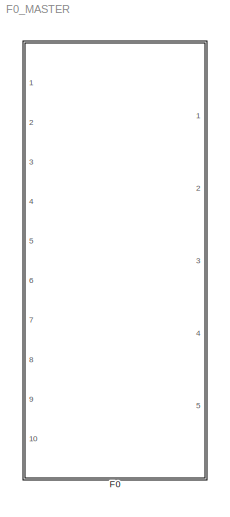
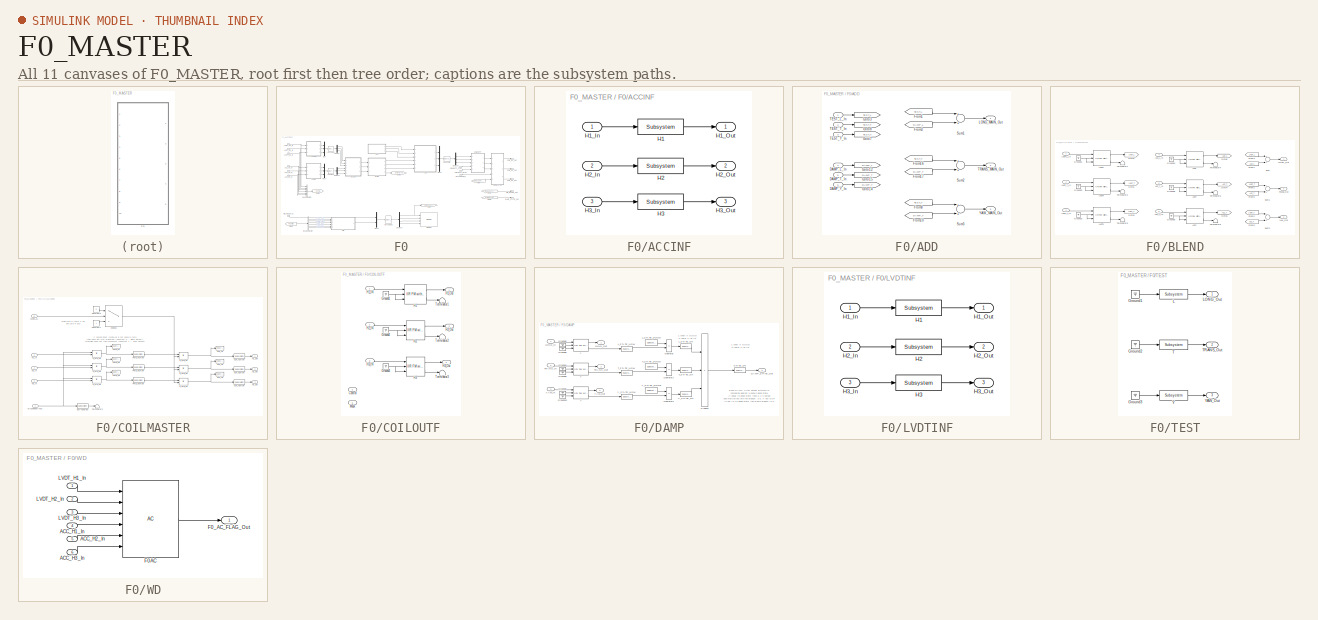
[diagram: thumbnail index - all 11 canvases of the model, root first then tree order]
MODEL F0_MASTER
KIND library
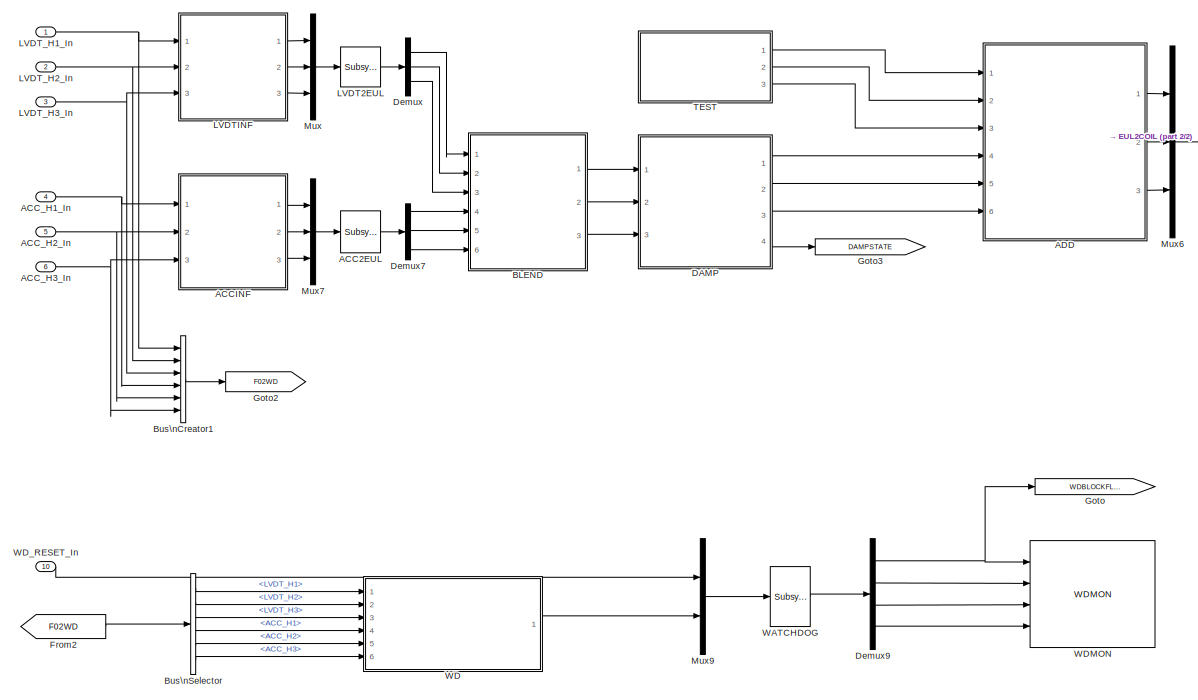
[diagram: F0 - part 1/2, center side, full height]
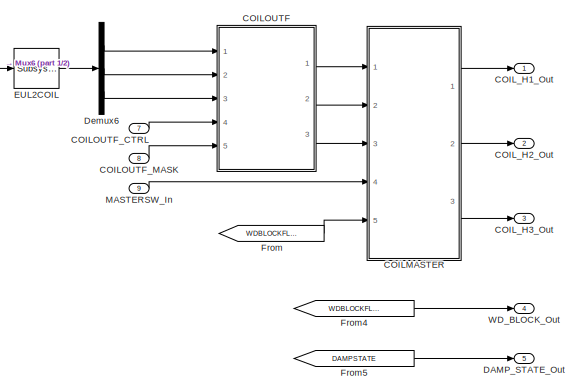
[diagram: F0 - part 2/2, middle right region]
BLOCK [SubSystem] F0
  Ports = [10, 5]
  RequestExecContextInheritance = off
  SID = 1
BLOCK [Reference] F0/ACC2EUL  REF=cdsMuxMatrix/Subsystem
  AttributesFormatString = %<Tag>
  Description = ADL=SUS_INMATRIX.adl                                                                \nSCRIPT=generate_KisselButton.py 4 5 #CHANNEL# > #TARGET_DIR#/#FULL_PART_NAME#_KB.adl
  Ports = [1, 1]
  SID = 196
  SourceBlock = cdsMuxMatrix/Subsystem
  SourceType = SubSystem
  Tag = cdsMuxMatrix
BLOCK [SubSystem] F0/ACCINF
  Ports = [3, 3]
  RequestExecContextInheritance = off
  SID = 180
BLOCK [Reference] F0/ACCINF/H1  REF=cdsFilt/Subsystem
  AttributesFormatString = %<Tag>
  Description = Purpose:                                                                                                                                                                                                                                  \nStandard CDS IIR filter module.                                                                                                                                     ...<+1302ch>  <repeated x9 — deduplicated; at blocks: H1, H2, H3, L, T, Y>
  Ports = [1, 1]
  SID = 282
  SourceBlock = cdsFilt/Subsystem
  SourceType = SubSystem
  Tag = cdsFilt
BLOCK [Inport] F0/ACCINF/H1_In
  IconDisplay = Port number
  SID = 279
BLOCK [Outport] F0/ACCINF/H1_Out
  IconDisplay = Port number
  SID = 285
BLOCK [Reference] F0/ACCINF/H2  REF=cdsFilt/Subsystem
  AttributesFormatString = %<Tag>
  Ports = [1, 1]
  SID = 283
  SourceBlock = cdsFilt/Subsystem
  SourceType = SubSystem
  Tag = cdsFilt
BLOCK [Inport] F0/ACCINF/H2_In
  IconDisplay = Port number
  Port = 2
  SID = 280
BLOCK [Outport] F0/ACCINF/H2_Out
  IconDisplay = Port number
  Port = 2
  SID = 286
BLOCK [Reference] F0/ACCINF/H3  REF=cdsFilt/Subsystem
  AttributesFormatString = %<Tag>
  Ports = [1, 1]
  SID = 284
  SourceBlock = cdsFilt/Subsystem
  SourceType = SubSystem
  Tag = cdsFilt
BLOCK [Inport] F0/ACCINF/H3_In
  IconDisplay = Port number
  Port = 3
  SID = 281
BLOCK [Outport] F0/ACCINF/H3_Out
  IconDisplay = Port number
  Port = 3
  SID = 287
BLOCK [Inport] F0/ACC_H1_In
  IconDisplay = Port number
  Port = 4
  SID = 5
BLOCK [Inport] F0/ACC_H2_In
  IconDisplay = Port number
  Port = 5
  SID = 6
BLOCK [Inport] F0/ACC_H3_In
  IconDisplay = Port number
  Port = 6
  SID = 7
BLOCK [SubSystem] F0/ADD
  Ports = [6, 3]
  RequestExecContextInheritance = off
  SID = 14
BLOCK [Inport] F0/ADD/DAMP_L_In
  IconDisplay = Port number
  Port = 4
  SID = 295
BLOCK [Inport] F0/ADD/DAMP_T_In
  IconDisplay = Port number
  Port = 5
  SID = 296
BLOCK [Inport] F0/ADD/DAMP_Y_In
  IconDisplay = Port number
  Port = 6
  SID = 297
BLOCK [From] F0/ADD/From1
  CloseFcn = tagdialog Close
  GotoTag = TEST_L
  SID = 306
BLOCK [From] F0/ADD/From10
  CloseFcn = tagdialog Close
  GotoTag = DAMP_Y
  SID = 307
BLOCK [From] F0/ADD/From16
  CloseFcn = tagdialog Close
  GotoTag = TEST_T
  SID = 308
BLOCK [From] F0/ADD/From17
  CloseFcn = tagdialog Close
  GotoTag = DAMP_T
  SID = 309
BLOCK [From] F0/ADD/From3
  CloseFcn = tagdialog Close
  GotoTag = DAMP_L
  SID = 310
BLOCK [From] F0/ADD/From8
  CloseFcn = tagdialog Close
  GotoTag = TEST_Y
  SID = 311
BLOCK [Goto] F0/ADD/Goto12
  GotoTag = DAMP_L
  SID = 298
BLOCK [Goto] F0/ADD/Goto14
  GotoTag = DAMP_Y
  SID = 299
BLOCK [Goto] F0/ADD/Goto15
  GotoTag = DAMP_T
  SID = 300
BLOCK [Goto] F0/ADD/Goto3
  GotoTag = TEST_L
  SID = 292
BLOCK [Goto] F0/ADD/Goto7
  GotoTag = TEST_Y
  SID = 293
BLOCK [Goto] F0/ADD/Goto8
  GotoTag = TEST_T
  SID = 294
BLOCK [Outport] F0/ADD/LONG_MAIN_Out
  IconDisplay = Port number
  SID = 30
BLOCK [Sum] F0/ADD/Sum1
  InputSameDT = off
  OutDataTypeStr = Inherit: Inherit via internal rule
  Ports = [2, 1]
  SID = 22
  SaturateOnIntegerOverflow = off
BLOCK [Sum] F0/ADD/Sum2
  InputSameDT = off
  OutDataTypeStr = Inherit: Inherit via internal rule
  Ports = [2, 1]
  SID = 301
  SaturateOnIntegerOverflow = off
BLOCK [Sum] F0/ADD/Sum3
  InputSameDT = off
  OutDataTypeStr = Inherit: Inherit via internal rule
  Ports = [2, 1]
  SID = 303
  SaturateOnIntegerOverflow = off
BLOCK [Inport] F0/ADD/TEST_L_In
  IconDisplay = Port number
  SID = 289
BLOCK [Inport] F0/ADD/TEST_T_In
  IconDisplay = Port number
  Port = 2
  SID = 290
BLOCK [Inport] F0/ADD/TEST_Y_In
  IconDisplay = Port number
  Port = 3
  SID = 291
BLOCK [Outport] F0/ADD/TRANS_MAIN_Out
  IconDisplay = Port number
  Port = 2
  SID = 302
BLOCK [Outport] F0/ADD/YAW_MAIN_Out
  IconDisplay = Port number
  Port = 3
  SID = 304
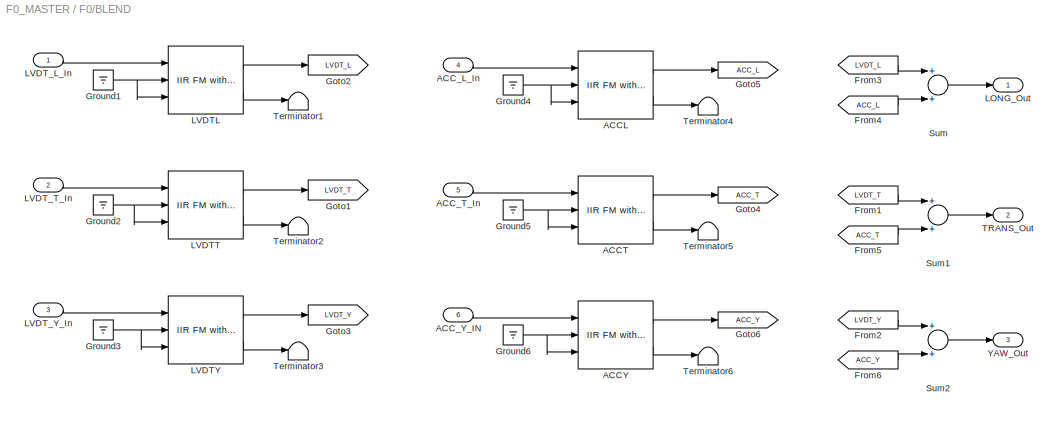
BLOCK [SubSystem] F0/BLEND
  Ports = [6, 3]
  RequestExecContextInheritance = off
  SID = 33
BLOCK [Reference] F0/BLEND/ACCL  REF=cdsFiltCtrl/IIR FM with control
  AttributesFormatString = %<Tag>
  Description = cdsFiltCntrl is the standard IIR filter module (exactly the same as cdsFilt) but with added control data output 'Ctrl'. Filter module digital signal output appears on the first output, which is called 'Val'. 'Ctrl' output has a bit pattern encoding the state of filter's on/off switches (FM1 through FM10). The bit values are:\n                                                                        ...<+4621ch>  <repeated x12 — deduplicated; at blocks: ACCL, ACCT, ACCY, LVDTL, LVDTT, LVDTY, H1, H2, H3, L, T, Y>
  Ports = [3, 2]
  SID = 61
  SourceBlock = cdsFiltCtrl/IIR FM with control
  SourceType = SubSystem
  Tag = cdsFiltCtrl
BLOCK [Reference] F0/BLEND/ACCT  REF=cdsFiltCtrl/IIR FM with control
  AttributesFormatString = %<Tag>
  Ports = [3, 2]
  SID = 62
  SourceBlock = cdsFiltCtrl/IIR FM with control
  SourceType = SubSystem
  Tag = cdsFiltCtrl
BLOCK [Reference] F0/BLEND/ACCY  REF=cdsFiltCtrl/IIR FM with control
  AttributesFormatString = %<Tag>
  Ports = [3, 2]
  SID = 63
  SourceBlock = cdsFiltCtrl/IIR FM with control
  SourceType = SubSystem
  Tag = cdsFiltCtrl
BLOCK [Inport] F0/BLEND/ACC_L_In
  IconDisplay = Port number
  Port = 4
  SID = 37
BLOCK [Inport] F0/BLEND/ACC_T_In
  IconDisplay = Port number
  Port = 5
  SID = 38
BLOCK [Inport] F0/BLEND/ACC_Y_IN
  IconDisplay = Port number
  Port = 6
  SID = 39
BLOCK [From] F0/BLEND/From1
  CloseFcn = tagdialog Close
  GotoTag = LVDT_T
  SID = 40
BLOCK [From] F0/BLEND/From2
  CloseFcn = tagdialog Close
  GotoTag = LVDT_Y
  SID = 41
BLOCK [From] F0/BLEND/From3
  CloseFcn = tagdialog Close
  GotoTag = LVDT_L
  SID = 42
BLOCK [From] F0/BLEND/From4
  CloseFcn = tagdialog Close
  GotoTag = ACC_L
  SID = 43
BLOCK [From] F0/BLEND/From5
  CloseFcn = tagdialog Close
  GotoTag = ACC_T
  SID = 44
BLOCK [From] F0/BLEND/From6
  CloseFcn = tagdialog Close
  GotoTag = ACC_Y
  SID = 45
BLOCK [Goto] F0/BLEND/Goto1
  GotoTag = LVDT_T
  SID = 46
BLOCK [Goto] F0/BLEND/Goto2
  GotoTag = LVDT_L
  SID = 47
BLOCK [Goto] F0/BLEND/Goto3
  GotoTag = LVDT_Y
  SID = 48
BLOCK [Goto] F0/BLEND/Goto4
  GotoTag = ACC_T
  SID = 49
BLOCK [Goto] F0/BLEND/Goto5
  GotoTag = ACC_L
  SID = 50
BLOCK [Goto] F0/BLEND/Goto6
  GotoTag = ACC_Y
  SID = 51
BLOCK [Ground] F0/BLEND/Ground1
  SID = 52
BLOCK [Ground] F0/BLEND/Ground2
  SID = 53
BLOCK [Ground] F0/BLEND/Ground3
  SID = 54
BLOCK [Ground] F0/BLEND/Ground4
  SID = 55
BLOCK [Ground] F0/BLEND/Ground5
  SID = 56
BLOCK [Ground] F0/BLEND/Ground6
  SID = 57
BLOCK [Outport] F0/BLEND/LONG_Out
  IconDisplay = Port number
  SID = 73
BLOCK [Reference] F0/BLEND/LVDTL  REF=cdsFiltCtrl/IIR FM with control
  AttributesFormatString = %<Tag>
  Ports = [3, 2]
  SID = 58
  SourceBlock = cdsFiltCtrl/IIR FM with control
  SourceType = SubSystem
  Tag = cdsFiltCtrl
BLOCK [Reference] F0/BLEND/LVDTT  REF=cdsFiltCtrl/IIR FM with control
  AttributesFormatString = %<Tag>
  Ports = [3, 2]
  SID = 59
  SourceBlock = cdsFiltCtrl/IIR FM with control
  SourceType = SubSystem
  Tag = cdsFiltCtrl
BLOCK [Reference] F0/BLEND/LVDTY  REF=cdsFiltCtrl/IIR FM with control
  AttributesFormatString = %<Tag>
  Ports = [3, 2]
  SID = 60
  SourceBlock = cdsFiltCtrl/IIR FM with control
  SourceType = SubSystem
  Tag = cdsFiltCtrl
BLOCK [Inport] F0/BLEND/LVDT_L_In
  IconDisplay = Port number
  SID = 34
BLOCK [Inport] F0/BLEND/LVDT_T_In
  IconDisplay = Port number
  Port = 2
  SID = 35
BLOCK [Inport] F0/BLEND/LVDT_Y_In
  IconDisplay = Port number
  Port = 3
  SID = 36
BLOCK [Sum] F0/BLEND/Sum
  InputSameDT = off
  OutDataTypeStr = Inherit: Inherit via internal rule
  Ports = [2, 1]
  SID = 64
  SaturateOnIntegerOverflow = off
BLOCK [Sum] F0/BLEND/Sum1
  InputSameDT = off
  OutDataTypeStr = Inherit: Inherit via internal rule
  Ports = [2, 1]
  SID = 65
  SaturateOnIntegerOverflow = off
BLOCK [Sum] F0/BLEND/Sum2
  InputSameDT = off
  OutDataTypeStr = Inherit: Inherit via internal rule
  Ports = [2, 1]
  SID = 66
  SaturateOnIntegerOverflow = off
BLOCK [Outport] F0/BLEND/TRANS_Out
  IconDisplay = Port number
  Port = 2
  SID = 74
BLOCK [Terminator] F0/BLEND/Terminator1
  SID = 67
BLOCK [Terminator] F0/BLEND/Terminator2
  SID = 68
BLOCK [Terminator] F0/BLEND/Terminator3
  SID = 69
BLOCK [Terminator] F0/BLEND/Terminator4
  SID = 70
BLOCK [Terminator] F0/BLEND/Terminator5
  SID = 71
BLOCK [Terminator] F0/BLEND/Terminator6
  SID = 72
BLOCK [Outport] F0/BLEND/YAW_Out
  IconDisplay = Port number
  Port = 3
  SID = 75
BLOCK [BusCreator] F0/Bus\nCreator1
  DisplayOption = bar
  Inputs = 'LVDT_H1','LVDT_H2','LVDT_H3','ACC_H1','ACC_H2','ACC_H3'
  Ports = [6, 1]
  SID = 76
BLOCK [BusSelector] F0/Bus\nSelector
  OutputSignals = LVDT_H1,LVDT_H2,LVDT_H3,ACC_H1,ACC_H2,ACC_H3
  Ports = [1, 6]
  SID = 77
BLOCK [SubSystem] F0/COILMASTER
  Ports = [5, 3]
  RequestExecContextInheritance = off
  SID = 78
BLOCK [Switch] F0/COILMASTER/Choice1
  Criteria = u2 ~= 0
  InputSameDT = off
  SID = 84
  SaturateOnIntegerOverflow = off
  Threshold = 0.5
BLOCK [Constant] F0/COILMASTER/Constant0
  SID = 85
  Value = 0
BLOCK [Constant] F0/COILMASTER/Constant1
  SID = 86
BLOCK [Inport] F0/COILMASTER/H1_In
  IconDisplay = Port number
  SID = 79
BLOCK [Outport] F0/COILMASTER/H1_Out
  IconDisplay = Port number
  SID = 107
BLOCK [Inport] F0/COILMASTER/H2_In
  IconDisplay = Port number
  Port = 2
  SID = 80
BLOCK [Outport] F0/COILMASTER/H2_Out
  IconDisplay = Port number
  Port = 2
  SID = 108
BLOCK [Inport] F0/COILMASTER/H3_In
  IconDisplay = Port number
  Port = 3
  SID = 81
BLOCK [Outport] F0/COILMASTER/H3_Out
  IconDisplay = Port number
  Port = 3
  SID = 109
BLOCK [Inport] F0/COILMASTER/MASTERSWITCH
  IconDisplay = Port number
  Port = 4
  SID = 82
BLOCK [Reference] F0/COILMASTER/OUT_H1  REF=cdsTP/Subsystem
  AttributesFormatString = %<Tag>
  Ports = [1]
  SID = 87
  SourceBlock = cdsTP/Subsystem
  SourceType = SubSystem
  Tag = Test Point
BLOCK [Reference] F0/COILMASTER/OUT_H1MON  REF=cdsEpicsOut/Subsystem
  AttributesFormatString = %<Tag>
  Description = Purpose:                                          \nOutput a FE signal to an EPICS channel.           \n                                                  \nOperation:                                        \nTakes input value and passes it to EPICS record.  \n                                                  \nUsage:                                            \nName the part with the desired EPICS...<+14ch>  <repeated x14 — deduplicated; at blocks: OUT_H1MON, OUT_H2MON, OUT_H3MON, PWD_H1MON, PWD_H2MON, PWD_H3MON, SWITCHMON, L_STATE_NOW, L_STATE_OK, STATE_OK, T_STATE_NOW, T_STATE_OK, V_STATE_OK, Y_STATE_NOW>
  Ports = [1, 1]
  SID = 88
  SourceBlock = cdsEpicsOut/Subsystem
  SourceType = SubSystem
  Tag = cdsEpicsOutput
BLOCK [Reference] F0/COILMASTER/OUT_H2  REF=cdsTP/Subsystem
  AttributesFormatString = %<Tag>
  Ports = [1]
  SID = 89
  SourceBlock = cdsTP/Subsystem
  SourceType = SubSystem
  Tag = Test Point
BLOCK [Reference] F0/COILMASTER/OUT_H2MON  REF=cdsEpicsOut/Subsystem
  AttributesFormatString = %<Tag>
  Ports = [1, 1]
  SID = 90
  SourceBlock = cdsEpicsOut/Subsystem
  SourceType = SubSystem
  Tag = cdsEpicsOutput
BLOCK [Reference] F0/COILMASTER/OUT_H3  REF=cdsTP/Subsystem
  AttributesFormatString = %<Tag>
  Ports = [1]
  SID = 91
  SourceBlock = cdsTP/Subsystem
  SourceType = SubSystem
  Tag = Test Point
BLOCK [Reference] F0/COILMASTER/OUT_H3MON  REF=cdsEpicsOut/Subsystem
  AttributesFormatString = %<Tag>
  Ports = [1, 1]
  SID = 92
  SourceBlock = cdsEpicsOut/Subsystem
  SourceType = SubSystem
  Tag = cdsEpicsOutput
BLOCK [Reference] F0/COILMASTER/PWD_H1  REF=cdsTP/Subsystem
  AttributesFormatString = %<Tag>
  Ports = [1]
  SID = 93
  SourceBlock = cdsTP/Subsystem
  SourceType = SubSystem
  Tag = Test Point
BLOCK [Reference] F0/COILMASTER/PWD_H1MON  REF=cdsEpicsOut/Subsystem
  AttributesFormatString = %<Tag>
  Ports = [1, 1]
  SID = 94
  SourceBlock = cdsEpicsOut/Subsystem
  SourceType = SubSystem
  Tag = cdsEpicsOutput
BLOCK [Reference] F0/COILMASTER/PWD_H2  REF=cdsTP/Subsystem
  AttributesFormatString = %<Tag>
  Ports = [1]
  SID = 95
  SourceBlock = cdsTP/Subsystem
  SourceType = SubSystem
  Tag = Test Point
BLOCK [Reference] F0/COILMASTER/PWD_H2MON  REF=cdsEpicsOut/Subsystem
  AttributesFormatString = %<Tag>
  Ports = [1, 1]
  SID = 96
  SourceBlock = cdsEpicsOut/Subsystem
  SourceType = SubSystem
  Tag = cdsEpicsOutput
BLOCK [Reference] F0/COILMASTER/PWD_H3  REF=cdsTP/Subsystem
  AttributesFormatString = %<Tag>
  Ports = [1]
  SID = 97
  SourceBlock = cdsTP/Subsystem
  SourceType = SubSystem
  Tag = Test Point
BLOCK [Reference] F0/COILMASTER/PWD_H3MON  REF=cdsEpicsOut/Subsystem
  AttributesFormatString = %<Tag>
  Ports = [1, 1]
  SID = 98
  SourceBlock = cdsEpicsOut/Subsystem
  SourceType = SubSystem
  Tag = cdsEpicsOutput
BLOCK [Product] F0/COILMASTER/P_MS_H1
  InputSameDT = off
  OutDataTypeStr = Inherit: Inherit via internal rule
  Ports = [2, 1]
  SID = 99
  SaturateOnIntegerOverflow = off
BLOCK [Product] F0/COILMASTER/P_MS_H2
  InputSameDT = off
  OutDataTypeStr = Inherit: Inherit via internal rule
  Ports = [2, 1]
  SID = 100
  SaturateOnIntegerOverflow = off
BLOCK [Product] F0/COILMASTER/P_MS_H3
  InputSameDT = off
  OutDataTypeStr = Inherit: Inherit via internal rule
  Ports = [2, 1]
  SID = 101
  SaturateOnIntegerOverflow = off
BLOCK [Product] F0/COILMASTER/P_WD_H1
  InputSameDT = off
  OutDataTypeStr = Inherit: Inherit via internal rule
  Ports = [2, 1]
  SID = 102
  SaturateOnIntegerOverflow = off
BLOCK [Product] F0/COILMASTER/P_WD_H2
  InputSameDT = off
  OutDataTypeStr = Inherit: Inherit via internal rule
  Ports = [2, 1]
  SID = 103
  SaturateOnIntegerOverflow = off
BLOCK [Product] F0/COILMASTER/P_WD_H3
  InputSameDT = off
  OutDataTypeStr = Inherit: Inherit via internal rule
  Ports = [2, 1]
  SID = 104
  SaturateOnIntegerOverflow = off
BLOCK [Reference] F0/COILMASTER/SWITCHMON  REF=cdsEpicsOut/Subsystem
  AttributesFormatString = %<Tag>
  Ports = [1, 1]
  SID = 105
  SourceBlock = cdsEpicsOut/Subsystem
  SourceType = SubSystem
  Tag = cdsEpicsOutput
BLOCK [Terminator] F0/COILMASTER/Terminator2
  SID = 106
BLOCK [Inport] F0/COILMASTER/WDFLAG
  IconDisplay = Port number
  Port = 5
  SID = 83
BLOCK [SubSystem] F0/COILOUTF
  Ports = [5, 3]
  RequestExecContextInheritance = off
  SID = 113
BLOCK [Inport] F0/COILOUTF/Control
  IconDisplay = Port number
  Port = 4
  SID = 312
BLOCK [Ground] F0/COILOUTF/Ground1
  SID = 117
BLOCK [Ground] F0/COILOUTF/Ground2
  SID = 118
BLOCK [Ground] F0/COILOUTF/Ground3
  SID = 119
BLOCK [Reference] F0/COILOUTF/H1  REF=cdsFiltCtrl/IIR FM with control
  AttributesFormatString = %<Tag>
  Ports = [3, 2]
  SID = 120
  SourceBlock = cdsFiltCtrl/IIR FM with control
  SourceType = SubSystem
  Tag = cdsFiltCtrl
BLOCK [Inport] F0/COILOUTF/H1_IN
  IconDisplay = Port number
  SID = 114
BLOCK [Outport] F0/COILOUTF/H1_Out
  IconDisplay = Port number
  SID = 126
BLOCK [Reference] F0/COILOUTF/H2  REF=cdsFiltCtrl/IIR FM with control
  AttributesFormatString = %<Tag>
  Ports = [3, 2]
  SID = 121
  SourceBlock = cdsFiltCtrl/IIR FM with control
  SourceType = SubSystem
  Tag = cdsFiltCtrl
BLOCK [Inport] F0/COILOUTF/H2_IN
  IconDisplay = Port number
  Port = 2
  SID = 115
BLOCK [Outport] F0/COILOUTF/H2_Out
  IconDisplay = Port number
  Port = 2
  SID = 127
BLOCK [Reference] F0/COILOUTF/H3  REF=cdsFiltCtrl/IIR FM with control
  AttributesFormatString = %<Tag>
  Ports = [3, 2]
  SID = 122
  SourceBlock = cdsFiltCtrl/IIR FM with control
  SourceType = SubSystem
  Tag = cdsFiltCtrl
BLOCK [Inport] F0/COILOUTF/H3_IN
  IconDisplay = Port number
  Port = 3
  SID = 116
BLOCK [Outport] F0/COILOUTF/H3_Out
  IconDisplay = Port number
  Port = 3
  SID = 128
BLOCK [Inport] F0/COILOUTF/Mask
  IconDisplay = Port number
  Port = 5
  SID = 313
BLOCK [Terminator] F0/COILOUTF/Terminator1
  SID = 123
BLOCK [Terminator] F0/COILOUTF/Terminator2
  SID = 124
BLOCK [Terminator] F0/COILOUTF/Terminator3
  SID = 125
BLOCK [Inport] F0/COILOUTF_CTRL
  IconDisplay = Port number
  Port = 7
  SID = 314
BLOCK [Inport] F0/COILOUTF_MASK
  IconDisplay = Port number
  Port = 8
  SID = 315
BLOCK [Outport] F0/COIL_H1_Out
  IconDisplay = Port number
  SID = 230
BLOCK [Outport] F0/COIL_H2_Out
  IconDisplay = Port number
  Port = 2
  SID = 231
BLOCK [Outport] F0/COIL_H3_Out
  IconDisplay = Port number
  Port = 3
  SID = 232
BLOCK [SubSystem] F0/DAMP
  Ports = [3, 4]
  RequestExecContextInheritance = off
  SID = 197
BLOCK [Outport] F0/DAMP/DAMP_STATE_Out
  IconDisplay = Port number
  Port = 4
  SID = 264
BLOCK [Ground] F0/DAMP/Ground12
  SID = 239
BLOCK [Ground] F0/DAMP/Ground4
  SID = 238
BLOCK [Ground] F0/DAMP/Ground5
  SID = 240
BLOCK [Ground] F0/DAMP/Ground6
  SID = 241
BLOCK [Ground] F0/DAMP/Ground8
  SID = 242
BLOCK [Ground] F0/DAMP/Ground9
  SID = 243
BLOCK [Reference] F0/DAMP/L  REF=cdsFiltCtrl/IIR FM with control
  AttributesFormatString = %<Tag>
  Ports = [3, 2]
  SID = 244
  SourceBlock = cdsFiltCtrl/IIR FM with control
  SourceType = SubSystem
  Tag = cdsFiltCtrl
BLOCK [Inport] F0/DAMP/LONG_In
  IconDisplay = Port number
  SID = 235
BLOCK [Outport] F0/DAMP/LONG_Out
  IconDisplay = Port number
  SID = 261
BLOCK [Reference] F0/DAMP/L_STATE_GOOD  REF=cdsEpicsIn/Subsystem
  AttributesFormatString = %<Tag>
  Description = Purpose:                                                                              \nCreate an EPICS input channel connection to the FE realtime controls.                 \n                                                                                      \nOperation:                                                                            \nOutputs value from an EPICS ai record. Value is ...<+266ch>  <repeated x3 — deduplicated; at blocks: L_STATE_GOOD, T_STATE_GOOD, Y_STATE_GOOD>
  Ports = [0, 1]
  SID = 245
  SourceBlock = cdsEpicsIn/Subsystem
  SourceType = SubSystem
  Tag = cdsEpicsIn
BLOCK [Reference] F0/DAMP/L_STATE_NOW  REF=cdsEpicsOut/Subsystem
  AttributesFormatString = %<Tag>
  Ports = [1, 1]
  SID = 246
  SourceBlock = cdsEpicsOut/Subsystem
  SourceType = SubSystem
  Tag = cdsEpicsOutput
BLOCK [Reference] F0/DAMP/L_STATE_OK  REF=cdsEpicsOut/Subsystem
  AttributesFormatString = %<Tag>
  Ports = [1, 1]
  SID = 247
  SourceBlock = cdsEpicsOut/Subsystem
  SourceType = SubSystem
  Tag = cdsEpicsOutput
BLOCK [RelationalOperator] F0/DAMP/Operator
  InputSameDT = off
  Operator = ==
  OutDataTypeStr = boolean
  Ports = [2, 1]
  SID = 248
BLOCK [RelationalOperator] F0/DAMP/Operator1
  InputSameDT = off
  Operator = ==
  OutDataTypeStr = boolean
  Ports = [2, 1]
  SID = 249
BLOCK [RelationalOperator] F0/DAMP/Operator2
  InputSameDT = off
  Operator = ==
  OutDataTypeStr = boolean
  Ports = [2, 1]
  SID = 250
BLOCK [Product] F0/DAMP/Product
  InputSameDT = off
  Inputs = 3
  OutDataTypeStr = Inherit: Inherit via internal rule
  Ports = [3, 1]
  SID = 251
  SaturateOnIntegerOverflow = off
BLOCK [Reference] F0/DAMP/STATE_OK  REF=cdsEpicsOut/Subsystem
  AttributesFormatString = %<Tag>
  Ports = [1, 1]
  SID = 252
  SourceBlock = cdsEpicsOut/Subsystem
  SourceType = SubSystem
  Tag = cdsEpicsOutput
BLOCK [Reference] F0/DAMP/T  REF=cdsFiltCtrl/IIR FM with control
  AttributesFormatString = %<Tag>
  Ports = [3, 2]
  SID = 253
  SourceBlock = cdsFiltCtrl/IIR FM with control
  SourceType = SubSystem
  Tag = cdsFiltCtrl
BLOCK [Inport] F0/DAMP/TRANS_In
  IconDisplay = Port number
  Port = 2
  SID = 236
BLOCK [Outport] F0/DAMP/TRANS_Out
  IconDisplay = Port number
  Port = 2
  SID = 262
BLOCK [Reference] F0/DAMP/T_STATE_GOOD  REF=cdsEpicsIn/Subsystem
  AttributesFormatString = %<Tag>
  Ports = [0, 1]
  SID = 254
  SourceBlock = cdsEpicsIn/Subsystem
  SourceType = SubSystem
  Tag = cdsEpicsIn
BLOCK [Reference] F0/DAMP/T_STATE_NOW  REF=cdsEpicsOut/Subsystem
  AttributesFormatString = %<Tag>
  Ports = [1, 1]
  SID = 255
  SourceBlock = cdsEpicsOut/Subsystem
  SourceType = SubSystem
  Tag = cdsEpicsOutput
BLOCK [Reference] F0/DAMP/T_STATE_OK  REF=cdsEpicsOut/Subsystem
  AttributesFormatString = %<Tag>
  Ports = [1, 1]
  SID = 256
  SourceBlock = cdsEpicsOut/Subsystem
  SourceType = SubSystem
  Tag = cdsEpicsOutput
BLOCK [Reference] F0/DAMP/V_STATE_OK  REF=cdsEpicsOut/Subsystem
  AttributesFormatString = %<Tag>
  Ports = [1, 1]
  SID = 260
  SourceBlock = cdsEpicsOut/Subsystem
  SourceType = SubSystem
  Tag = cdsEpicsOutput
BLOCK [Reference] F0/DAMP/Y  REF=cdsFiltCtrl/IIR FM with control
  AttributesFormatString = %<Tag>
  Ports = [3, 2]
  SID = 257
  SourceBlock = cdsFiltCtrl/IIR FM with control
  SourceType = SubSystem
  Tag = cdsFiltCtrl
BLOCK [Inport] F0/DAMP/YAW_In
  IconDisplay = Port number
  Port = 3
  SID = 237
BLOCK [Outport] F0/DAMP/YAW_Out
  IconDisplay = Port number
  Port = 3
  SID = 263
BLOCK [Reference] F0/DAMP/Y_STATE_GOOD  REF=cdsEpicsIn/Subsystem
  AttributesFormatString = %<Tag>
  Ports = [0, 1]
  SID = 258
  SourceBlock = cdsEpicsIn/Subsystem
  SourceType = SubSystem
  Tag = cdsEpicsIn
BLOCK [Reference] F0/DAMP/Y_STATE_NOW  REF=cdsEpicsOut/Subsystem
  AttributesFormatString = %<Tag>
  Ports = [1, 1]
  SID = 259
  SourceBlock = cdsEpicsOut/Subsystem
  SourceType = SubSystem
  Tag = cdsEpicsOutput
BLOCK [Outport] F0/DAMP_STATE_Out
  IconDisplay = Port number
  Port = 5
  SID = 321
BLOCK [Demux] F0/Demux
  DisplayOption = bar
  Outputs = 3
  Ports = [1, 3]
  SID = 129
BLOCK [Demux] F0/Demux6
  DisplayOption = bar
  Outputs = 3
  Ports = [1, 3]
  SID = 130
BLOCK [Demux] F0/Demux7
  DisplayOption = bar
  Outputs = 3
  Ports = [1, 3]
  SID = 131
BLOCK [Demux] F0/Demux9
  DisplayOption = bar
  Ports = [1, 4]
  SID = 132
BLOCK [Reference] F0/EUL2COIL  REF=cdsMuxMatrix/Subsystem
  AttributesFormatString = %<Tag>
  Description = ADL=SUS_INMATRIX.adl                                                                \nSCRIPT=generate_KisselButton.py 4 5 #CHANNEL# > #TARGET_DIR#/#FULL_PART_NAME#_KB.adl
  Ports = [1, 1]
  SID = 112
  SourceBlock = cdsMuxMatrix/Subsystem
  SourceType = SubSystem
  Tag = cdsMuxMatrix
BLOCK [From] F0/From
  GotoTag = WDBLOCKFLAG
  SID = 133
BLOCK [From] F0/From2
  CloseFcn = tagdialog Close
  GotoTag = F02WD
  SID = 134
BLOCK [From] F0/From4
  CloseFcn = tagdialog Close
  GotoTag = WDBLOCKFLAG
  SID = 318
BLOCK [From] F0/From5
  CloseFcn = tagdialog Close
  GotoTag = DAMPSTATE
  SID = 319
BLOCK [Goto] F0/Goto
  GotoTag = WDBLOCKFLAG
  SID = 157
BLOCK [Goto] F0/Goto2
  GotoTag = F02WD
  SID = 158
BLOCK [Goto] F0/Goto3
  GotoTag = DAMPSTATE
  SID = 288
BLOCK [Reference] F0/LVDT2EUL  REF=cdsMuxMatrix/Subsystem
  AttributesFormatString = %<Tag>
  Description = ADL=SUS_INMATRIX.adl                                                                \nSCRIPT=generate_KisselButton.py 4 5 #CHANNEL# > #TARGET_DIR#/#FULL_PART_NAME#_KB.adl
  Ports = [1, 1]
  SID = 175
  SourceBlock = cdsMuxMatrix/Subsystem
  SourceType = SubSystem
  Tag = cdsMuxMatrix
BLOCK [SubSystem] F0/LVDTINF
  Ports = [3, 3]
  RequestExecContextInheritance = off
  SID = 159
BLOCK [Reference] F0/LVDTINF/H1  REF=cdsFilt/Subsystem
  AttributesFormatString = %<Tag>
  Ports = [1, 1]
  SID = 276
  SourceBlock = cdsFilt/Subsystem
  SourceType = SubSystem
  Tag = cdsFilt
BLOCK [Inport] F0/LVDTINF/H1_In
  IconDisplay = Port number
  SID = 160
BLOCK [Outport] F0/LVDTINF/H1_Out
  IconDisplay = Port number
  SID = 172
BLOCK [Reference] F0/LVDTINF/H2  REF=cdsFilt/Subsystem
  AttributesFormatString = %<Tag>
  Ports = [1, 1]
  SID = 277
  SourceBlock = cdsFilt/Subsystem
  SourceType = SubSystem
  Tag = cdsFilt
BLOCK [Inport] F0/LVDTINF/H2_In
  IconDisplay = Port number
  Port = 2
  SID = 161
BLOCK [Outport] F0/LVDTINF/H2_Out
  IconDisplay = Port number
  Port = 2
  SID = 173
BLOCK [Reference] F0/LVDTINF/H3  REF=cdsFilt/Subsystem
  AttributesFormatString = %<Tag>
  Ports = [1, 1]
  SID = 278
  SourceBlock = cdsFilt/Subsystem
  SourceType = SubSystem
  Tag = cdsFilt
BLOCK [Inport] F0/LVDTINF/H3_In
  IconDisplay = Port number
  Port = 3
  SID = 162
BLOCK [Outport] F0/LVDTINF/H3_Out
  IconDisplay = Port number
  Port = 3
  SID = 174
BLOCK [Inport] F0/LVDT_H1_In
  IconDisplay = Port number
  SID = 2
BLOCK [Inport] F0/LVDT_H2_In
  IconDisplay = Port number
  Port = 2
  SID = 3
BLOCK [Inport] F0/LVDT_H3_In
  IconDisplay = Port number
  Port = 3
  SID = 4
BLOCK [Inport] F0/MASTERSW_In
  IconDisplay = Port number
  Port = 9
  SID = 8
BLOCK [Mux] F0/Mux
  DisplayOption = bar
  Inputs = 3
  Ports = [3, 1]
  SID = 176
BLOCK [Mux] F0/Mux6
  DisplayOption = bar
  Inputs = 3
  Ports = [3, 1]
  SID = 177
BLOCK [Mux] F0/Mux7
  DisplayOption = bar
  Inputs = 3
  Ports = [3, 1]
  SID = 178
BLOCK [Mux] F0/Mux9
  DisplayOption = bar
  Inputs = 2
  Ports = [2, 1]
  SID = 179
BLOCK [SubSystem] F0/TEST
  Ports = [0, 3]
  RequestExecContextInheritance = off
  SID = 213
BLOCK [Ground] F0/TEST/Ground1
  SID = 214
BLOCK [Ground] F0/TEST/Ground2
  SID = 215
BLOCK [Ground] F0/TEST/Ground3
  SID = 216
BLOCK [Reference] F0/TEST/L  REF=cdsFilt/Subsystem
  AttributesFormatString = %<Tag>
  Ports = [1, 1]
  SID = 217
  SourceBlock = cdsFilt/Subsystem
  SourceType = SubSystem
  Tag = cdsFilt
BLOCK [Outport] F0/TEST/LONG_Out
  IconDisplay = Port number
  SID = 220
BLOCK [Reference] F0/TEST/T  REF=cdsFilt/Subsystem
  AttributesFormatString = %<Tag>
  Ports = [1, 1]
  SID = 218
  SourceBlock = cdsFilt/Subsystem
  SourceType = SubSystem
  Tag = cdsFilt
BLOCK [Outport] F0/TEST/TRANS_Out
  IconDisplay = Port number
  Port = 2
  SID = 221
BLOCK [Reference] F0/TEST/Y  REF=cdsFilt/Subsystem
  AttributesFormatString = %<Tag>
  Ports = [1, 1]
  SID = 219
  SourceBlock = cdsFilt/Subsystem
  SourceType = SubSystem
  Tag = cdsFilt
BLOCK [Outport] F0/TEST/YAW_Out
  IconDisplay = Port number
  Port = 3
  SID = 222
BLOCK [Reference] F0/WATCHDOG  REF=cdsFunctionCall/Subsystem
  AttributesFormatString = %<Tag>\\n%<Description>
  Description = inline OSEMWATCHDOG <path>
  Ports = [1, 1]
  SID = 227
  SourceBlock = cdsFunctionCall/Subsystem
  SourceType = SubSystem
  Tag = cdsFunctionCall
BLOCK [SubSystem] F0/WD
  Ports = [6, 1]
  RequestExecContextInheritance = off
  SID = 228
BLOCK [Inport] F0/WD/ACC_H1_In
  IconDisplay = Port number
  Port = 4
  SID = 326
BLOCK [Inport] F0/WD/ACC_H2_In
  IconDisplay = Port number
  Port = 5
  SID = 327
BLOCK [Inport] F0/WD/ACC_H3_In
  IconDisplay = Port number
  Port = 6
  SID = 328
BLOCK [Reference] F0/WD/F0AC  REF=SIXOSEM_F_WD_AC_MASTER/AC
  Ports = [6, 1]
  SID = 329
  SourceBlock = SIXOSEM_F_WD_AC_MASTER/AC
  SourceType = SubSystem
BLOCK [Outport] F0/WD/F0_AC_FLAG_Out
  IconDisplay = Port number
  SID = 330
BLOCK [Inport] F0/WD/LVDT_H1_In
  IconDisplay = Port number
  SID = 323
BLOCK [Inport] F0/WD/LVDT_H2_In
  IconDisplay = Port number
  Port = 2
  SID = 324
BLOCK [Inport] F0/WD/LVDT_H3_In
  IconDisplay = Port number
  Port = 3
  SID = 325
BLOCK [Reference] F0/WDMON  REF=SIXOSEM_F_STAGE_MASTER/SIXOSEM_F_STAGE_MASTER/WDMON
  Ports = [4]
  SID = 229
  SourceBlock = SIXOSEM_F_STAGE_MASTER/SIXOSEM_F_STAGE_MASTER/WDMON
  SourceType = SubSystem
BLOCK [Outport] F0/WD_BLOCK_Out
  IconDisplay = Port number
  Port = 4
  SID = 320
BLOCK [Inport] F0/WD_RESET_In
  IconDisplay = Port number
  Port = 10
  SID = 9
ANNOTATION F0/COILMASTER: If second input (WDFLAG) is not equal to zero, \nthen pass out first argument (Constant 0 -- Block Output), \notherwise pass out third argument (Constant 1 -- Pass Output)
ANNOTATION F0/COILMASTER: WDFLAG is 0 (zero) if OK,\nNon-zero if BAD
ANNOTATION F0/DAMP: 1 (one) if GOOD\n0 (zero) if BAD
ANNOTATION F0/DAMP: Each DAMP filter output bitword is \ncompared against a known good state.\nIf equal to good state, then a 1 is output \nand multiplied into the product. So, if any DOF\nis not in its good state, the whole product is 0.
LINE F0/ACC2EUL:1 -> F0/Demux7:1
LINE F0/ACCINF/H1:1 -> F0/ACCINF/H1_Out:1
LINE F0/ACCINF/H1_In:1 -> F0/ACCINF/H1:1
LINE F0/ACCINF/H2:1 -> F0/ACCINF/H2_Out:1
LINE F0/ACCINF/H2_In:1 -> F0/ACCINF/H2:1
LINE F0/ACCINF/H3:1 -> F0/ACCINF/H3_Out:1
LINE F0/ACCINF/H3_In:1 -> F0/ACCINF/H3:1
LINE F0/ACCINF:1 -> F0/Mux7:1
LINE F0/ACCINF:2 -> F0/Mux7:2
LINE F0/ACCINF:3 -> F0/Mux7:3
NET F0/ACC_H1_In:1 -> F0/ACCINF:1, F0/Bus\nCreator1:4
NET F0/ACC_H2_In:1 -> F0/ACCINF:2, F0/Bus\nCreator1:5
NET F0/ACC_H3_In:1 -> F0/ACCINF:3, F0/Bus\nCreator1:6
LINE F0/ADD/DAMP_L_In:1 -> F0/ADD/Goto12:1
LINE F0/ADD/DAMP_T_In:1 -> F0/ADD/Goto15:1
LINE F0/ADD/DAMP_Y_In:1 -> F0/ADD/Goto14:1
LINE F0/ADD/From10:1 -> F0/ADD/Sum3:2
LINE F0/ADD/From16:1 -> F0/ADD/Sum2:1
LINE F0/ADD/From17:1 -> F0/ADD/Sum2:2
LINE F0/ADD/From1:1 -> F0/ADD/Sum1:1
LINE F0/ADD/From3:1 -> F0/ADD/Sum1:2
LINE F0/ADD/From8:1 -> F0/ADD/Sum3:1
LINE F0/ADD/Sum1:1 -> F0/ADD/LONG_MAIN_Out:1
LINE F0/ADD/Sum2:1 -> F0/ADD/TRANS_MAIN_Out:1
LINE F0/ADD/Sum3:1 -> F0/ADD/YAW_MAIN_Out:1
LINE F0/ADD/TEST_L_In:1 -> F0/ADD/Goto3:1
LINE F0/ADD/TEST_T_In:1 -> F0/ADD/Goto8:1
LINE F0/ADD/TEST_Y_In:1 -> F0/ADD/Goto7:1
LINE F0/ADD:1 -> F0/Mux6:1
LINE F0/ADD:2 -> F0/Mux6:2
LINE F0/ADD:3 -> F0/Mux6:3
LINE F0/BLEND/ACCL:1 -> F0/BLEND/Goto5:1
LINE F0/BLEND/ACCL:2 -> F0/BLEND/Terminator4:1
LINE F0/BLEND/ACCT:1 -> F0/BLEND/Goto4:1
LINE F0/BLEND/ACCT:2 -> F0/BLEND/Terminator5:1
LINE F0/BLEND/ACCY:1 -> F0/BLEND/Goto6:1
LINE F0/BLEND/ACCY:2 -> F0/BLEND/Terminator6:1
LINE F0/BLEND/ACC_L_In:1 -> F0/BLEND/ACCL:1
LINE F0/BLEND/ACC_T_In:1 -> F0/BLEND/ACCT:1
LINE F0/BLEND/ACC_Y_IN:1 -> F0/BLEND/ACCY:1
LINE F0/BLEND/From1:1 -> F0/BLEND/Sum1:1
LINE F0/BLEND/From2:1 -> F0/BLEND/Sum2:1
LINE F0/BLEND/From3:1 -> F0/BLEND/Sum:1
LINE F0/BLEND/From4:1 -> F0/BLEND/Sum:2
LINE F0/BLEND/From5:1 -> F0/BLEND/Sum1:2
LINE F0/BLEND/From6:1 -> F0/BLEND/Sum2:2
NET F0/BLEND/Ground1:1 -> F0/BLEND/LVDTL:2, F0/BLEND/LVDTL:3
NET F0/BLEND/Ground2:1 -> F0/BLEND/LVDTT:2, F0/BLEND/LVDTT:3
NET F0/BLEND/Ground3:1 -> F0/BLEND/LVDTY:2, F0/BLEND/LVDTY:3
NET F0/BLEND/Ground4:1 -> F0/BLEND/ACCL:2, F0/BLEND/ACCL:3
NET F0/BLEND/Ground5:1 -> F0/BLEND/ACCT:2, F0/BLEND/ACCT:3
NET F0/BLEND/Ground6:1 -> F0/BLEND/ACCY:2, F0/BLEND/ACCY:3
LINE F0/BLEND/LVDTL:1 -> F0/BLEND/Goto2:1
LINE F0/BLEND/LVDTL:2 -> F0/BLEND/Terminator1:1
LINE F0/BLEND/LVDTT:1 -> F0/BLEND/Goto1:1
LINE F0/BLEND/LVDTT:2 -> F0/BLEND/Terminator2:1
LINE F0/BLEND/LVDTY:1 -> F0/BLEND/Goto3:1
LINE F0/BLEND/LVDTY:2 -> F0/BLEND/Terminator3:1
LINE F0/BLEND/LVDT_L_In:1 -> F0/BLEND/LVDTL:1
LINE F0/BLEND/LVDT_T_In:1 -> F0/BLEND/LVDTT:1
LINE F0/BLEND/LVDT_Y_In:1 -> F0/BLEND/LVDTY:1
LINE F0/BLEND/Sum1:1 -> F0/BLEND/TRANS_Out:1
LINE F0/BLEND/Sum2:1 -> F0/BLEND/YAW_Out:1
LINE F0/BLEND/Sum:1 -> F0/BLEND/LONG_Out:1
LINE F0/BLEND:1 -> F0/DAMP:1
LINE F0/BLEND:2 -> F0/DAMP:2
LINE F0/BLEND:3 -> F0/DAMP:3
LINE F0/Bus\nCreator1:1 -> F0/Goto2:1
LINE F0/Bus\nSelector:1 -> F0/WD:1
LINE F0/Bus\nSelector:2 -> F0/WD:2
LINE F0/Bus\nSelector:3 -> F0/WD:3
LINE F0/Bus\nSelector:4 -> F0/WD:4
LINE F0/Bus\nSelector:5 -> F0/WD:5
LINE F0/Bus\nSelector:6 -> F0/WD:6
NET F0/COILMASTER/Choice1:1 -> F0/COILMASTER/P_WD_H1:2, F0/COILMASTER/P_WD_H2:2, F0/COILMASTER/P_WD_H3:2
LINE F0/COILMASTER/Constant0:1 -> F0/COILMASTER/Choice1:1
LINE F0/COILMASTER/Constant1:1 -> F0/COILMASTER/Choice1:3
LINE F0/COILMASTER/H1_In:1 -> F0/COILMASTER/P_MS_H1:2
LINE F0/COILMASTER/H2_In:1 -> F0/COILMASTER/P_MS_H2:2
LINE F0/COILMASTER/H3_In:1 -> F0/COILMASTER/P_MS_H3:2
NET F0/COILMASTER/MASTERSWITCH:1 -> F0/COILMASTER/P_MS_H1:1, F0/COILMASTER/P_MS_H2:1, F0/COILMASTER/P_MS_H3:1, F0/COILMASTER/SWITCHMON:1
LINE F0/COILMASTER/OUT_H1MON:1 -> F0/COILMASTER/H1_Out:1
LINE F0/COILMASTER/OUT_H2MON:1 -> F0/COILMASTER/H2_Out:1
LINE F0/COILMASTER/OUT_H3MON:1 -> F0/COILMASTER/H3_Out:1
LINE F0/COILMASTER/PWD_H1MON:1 -> F0/COILMASTER/P_WD_H1:1
LINE F0/COILMASTER/PWD_H2MON:1 -> F0/COILMASTER/P_WD_H2:1
LINE F0/COILMASTER/PWD_H3MON:1 -> F0/COILMASTER/P_WD_H3:1
NET F0/COILMASTER/P_MS_H1:1 -> F0/COILMASTER/PWD_H1:1, F0/COILMASTER/PWD_H1MON:1
NET F0/COILMASTER/P_MS_H2:1 -> F0/COILMASTER/PWD_H2:1, F0/COILMASTER/PWD_H2MON:1
NET F0/COILMASTER/P_MS_H3:1 -> F0/COILMASTER/PWD_H3:1, F0/COILMASTER/PWD_H3MON:1
NET F0/COILMASTER/P_WD_H1:1 -> F0/COILMASTER/OUT_H1:1, F0/COILMASTER/OUT_H1MON:1
NET F0/COILMASTER/P_WD_H2:1 -> F0/COILMASTER/OUT_H2:1, F0/COILMASTER/OUT_H2MON:1
NET F0/COILMASTER/P_WD_H3:1 -> F0/COILMASTER/OUT_H3:1, F0/COILMASTER/OUT_H3MON:1
LINE F0/COILMASTER/SWITCHMON:1 -> F0/COILMASTER/Terminator2:1
LINE F0/COILMASTER/WDFLAG:1 -> F0/COILMASTER/Choice1:2
LINE F0/COILMASTER:1 -> F0/COIL_H1_Out:1
LINE F0/COILMASTER:2 -> F0/COIL_H2_Out:1
LINE F0/COILMASTER:3 -> F0/COIL_H3_Out:1
NET F0/COILOUTF/Ground1:1 -> F0/COILOUTF/H1:2, F0/COILOUTF/H1:3
NET F0/COILOUTF/Ground2:1 -> F0/COILOUTF/H2:2, F0/COILOUTF/H2:3
NET F0/COILOUTF/Ground3:1 -> F0/COILOUTF/H3:2, F0/COILOUTF/H3:3
LINE F0/COILOUTF/H1:1 -> F0/COILOUTF/H1_Out:1
LINE F0/COILOUTF/H1:2 -> F0/COILOUTF/Terminator1:1
LINE F0/COILOUTF/H1_IN:1 -> F0/COILOUTF/H1:1
LINE F0/COILOUTF/H2:1 -> F0/COILOUTF/H2_Out:1
LINE F0/COILOUTF/H2:2 -> F0/COILOUTF/Terminator2:1
LINE F0/COILOUTF/H2_IN:1 -> F0/COILOUTF/H2:1
LINE F0/COILOUTF/H3:1 -> F0/COILOUTF/H3_Out:1
LINE F0/COILOUTF/H3:2 -> F0/COILOUTF/Terminator3:1
LINE F0/COILOUTF/H3_IN:1 -> F0/COILOUTF/H3:1
LINE F0/COILOUTF:1 -> F0/COILMASTER:1
LINE F0/COILOUTF:2 -> F0/COILMASTER:2
LINE F0/COILOUTF:3 -> F0/COILMASTER:3
LINE F0/COILOUTF_CTRL:1 -> F0/COILOUTF:4
LINE F0/COILOUTF_MASK:1 -> F0/COILOUTF:5
LINE F0/DAMP/Ground12:1 -> F0/DAMP/Y:3
LINE F0/DAMP/Ground4:1 -> F0/DAMP/T:2
LINE F0/DAMP/Ground5:1 -> F0/DAMP/Y:2
LINE F0/DAMP/Ground6:1 -> F0/DAMP/L:2
LINE F0/DAMP/Ground8:1 -> F0/DAMP/L:3
LINE F0/DAMP/Ground9:1 -> F0/DAMP/T:3
LINE F0/DAMP/L:1 -> F0/DAMP/LONG_Out:1
LINE F0/DAMP/L:2 -> F0/DAMP/L_STATE_NOW:1
LINE F0/DAMP/LONG_In:1 -> F0/DAMP/L:1
LINE F0/DAMP/L_STATE_GOOD:1 -> F0/DAMP/Operator:1
LINE F0/DAMP/L_STATE_NOW:1 -> F0/DAMP/Operator:2
LINE F0/DAMP/L_STATE_OK:1 -> F0/DAMP/Product:1
LINE F0/DAMP/Operator1:1 -> F0/DAMP/T_STATE_OK:1
LINE F0/DAMP/Operator2:1 -> F0/DAMP/V_STATE_OK:1
LINE F0/DAMP/Operator:1 -> F0/DAMP/L_STATE_OK:1
LINE F0/DAMP/Product:1 -> F0/DAMP/STATE_OK:1
LINE F0/DAMP/STATE_OK:1 -> F0/DAMP/DAMP_STATE_Out:1
LINE F0/DAMP/T:1 -> F0/DAMP/TRANS_Out:1
LINE F0/DAMP/T:2 -> F0/DAMP/T_STATE_NOW:1
LINE F0/DAMP/TRANS_In:1 -> F0/DAMP/T:1
LINE F0/DAMP/T_STATE_GOOD:1 -> F0/DAMP/Operator1:1
LINE F0/DAMP/T_STATE_NOW:1 -> F0/DAMP/Operator1:2
LINE F0/DAMP/T_STATE_OK:1 -> F0/DAMP/Product:2
LINE F0/DAMP/V_STATE_OK:1 -> F0/DAMP/Product:3
LINE F0/DAMP/Y:1 -> F0/DAMP/YAW_Out:1
LINE F0/DAMP/Y:2 -> F0/DAMP/Y_STATE_NOW:1
LINE F0/DAMP/YAW_In:1 -> F0/DAMP/Y:1
LINE F0/DAMP/Y_STATE_GOOD:1 -> F0/DAMP/Operator2:1
LINE F0/DAMP/Y_STATE_NOW:1 -> F0/DAMP/Operator2:2
LINE F0/DAMP:1 -> F0/ADD:4
LINE F0/DAMP:2 -> F0/ADD:5
LINE F0/DAMP:3 -> F0/ADD:6
LINE F0/DAMP:4 -> F0/Goto3:1
LINE F0/Demux6:1 -> F0/COILOUTF:1
LINE F0/Demux6:2 -> F0/COILOUTF:2
LINE F0/Demux6:3 -> F0/COILOUTF:3
LINE F0/Demux7:1 -> F0/BLEND:4
LINE F0/Demux7:2 -> F0/BLEND:5
LINE F0/Demux7:3 -> F0/BLEND:6
NET F0/Demux9:1 -> F0/Goto:1, F0/WDMON:1
LINE F0/Demux9:2 -> F0/WDMON:2
LINE F0/Demux9:3 -> F0/WDMON:3
LINE F0/Demux9:4 -> F0/WDMON:4
LINE F0/Demux:1 -> F0/BLEND:1
LINE F0/Demux:2 -> F0/BLEND:2
LINE F0/Demux:3 -> F0/BLEND:3
LINE F0/EUL2COIL:1 -> F0/Demux6:1
LINE F0/From2:1 -> F0/Bus\nSelector:1
LINE F0/From4:1 -> F0/WD_BLOCK_Out:1
LINE F0/From5:1 -> F0/DAMP_STATE_Out:1
LINE F0/From:1 -> F0/COILMASTER:5
LINE F0/LVDT2EUL:1 -> F0/Demux:1
LINE F0/LVDTINF/H1:1 -> F0/LVDTINF/H1_Out:1
LINE F0/LVDTINF/H1_In:1 -> F0/LVDTINF/H1:1
LINE F0/LVDTINF/H2:1 -> F0/LVDTINF/H2_Out:1
LINE F0/LVDTINF/H2_In:1 -> F0/LVDTINF/H2:1
LINE F0/LVDTINF/H3:1 -> F0/LVDTINF/H3_Out:1
LINE F0/LVDTINF/H3_In:1 -> F0/LVDTINF/H3:1
LINE F0/LVDTINF:1 -> F0/Mux:1
LINE F0/LVDTINF:2 -> F0/Mux:2
LINE F0/LVDTINF:3 -> F0/Mux:3
NET F0/LVDT_H1_In:1 -> F0/Bus\nCreator1:1, F0/LVDTINF:1
NET F0/LVDT_H2_In:1 -> F0/Bus\nCreator1:2, F0/LVDTINF:2
NET F0/LVDT_H3_In:1 -> F0/Bus\nCreator1:3, F0/LVDTINF:3
LINE F0/MASTERSW_In:1 -> F0/COILMASTER:4
LINE F0/Mux6:1 -> F0/EUL2COIL:1
LINE F0/Mux7:1 -> F0/ACC2EUL:1
LINE F0/Mux9:1 -> F0/WATCHDOG:1
LINE F0/Mux:1 -> F0/LVDT2EUL:1
LINE F0/TEST/Ground1:1 -> F0/TEST/L:1
LINE F0/TEST/Ground2:1 -> F0/TEST/T:1
LINE F0/TEST/Ground3:1 -> F0/TEST/Y:1
LINE F0/TEST/L:1 -> F0/TEST/LONG_Out:1
LINE F0/TEST/T:1 -> F0/TEST/TRANS_Out:1
LINE F0/TEST/Y:1 -> F0/TEST/YAW_Out:1
LINE F0/TEST:1 -> F0/ADD:1
LINE F0/TEST:2 -> F0/ADD:2
LINE F0/TEST:3 -> F0/ADD:3
LINE F0/WATCHDOG:1 -> F0/Demux9:1
LINE F0/WD/ACC_H1_In:1 -> F0/WD/F0AC:4
LINE F0/WD/ACC_H2_In:1 -> F0/WD/F0AC:5
LINE F0/WD/ACC_H3_In:1 -> F0/WD/F0AC:6
LINE F0/WD/F0AC:1 -> F0/WD/F0_AC_FLAG_Out:1
LINE F0/WD/LVDT_H1_In:1 -> F0/WD/F0AC:1
LINE F0/WD/LVDT_H2_In:1 -> F0/WD/F0AC:2
LINE F0/WD/LVDT_H3_In:1 -> F0/WD/F0AC:3
LINE F0/WD:1 -> F0/Mux9:2
LINE F0/WD_RESET_In:1 -> F0/Mux9:1
note: NET lines group one-source signal fan-out (src -> all destinations, sorted); 1:1 wires keep LINE
note: 1 file-system path scrubbed to <path> (not preserved elsewhere — flat text is the only slx artifact)
